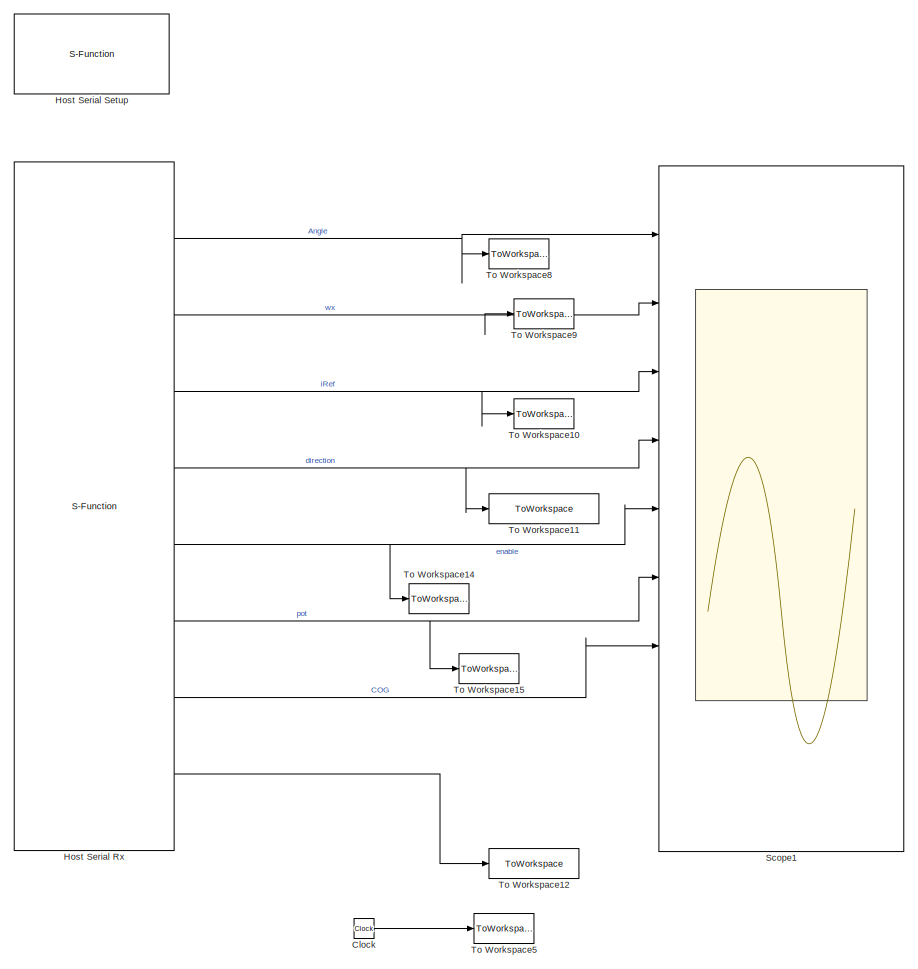
[diagram: root canvas - part 1/3, top left region]
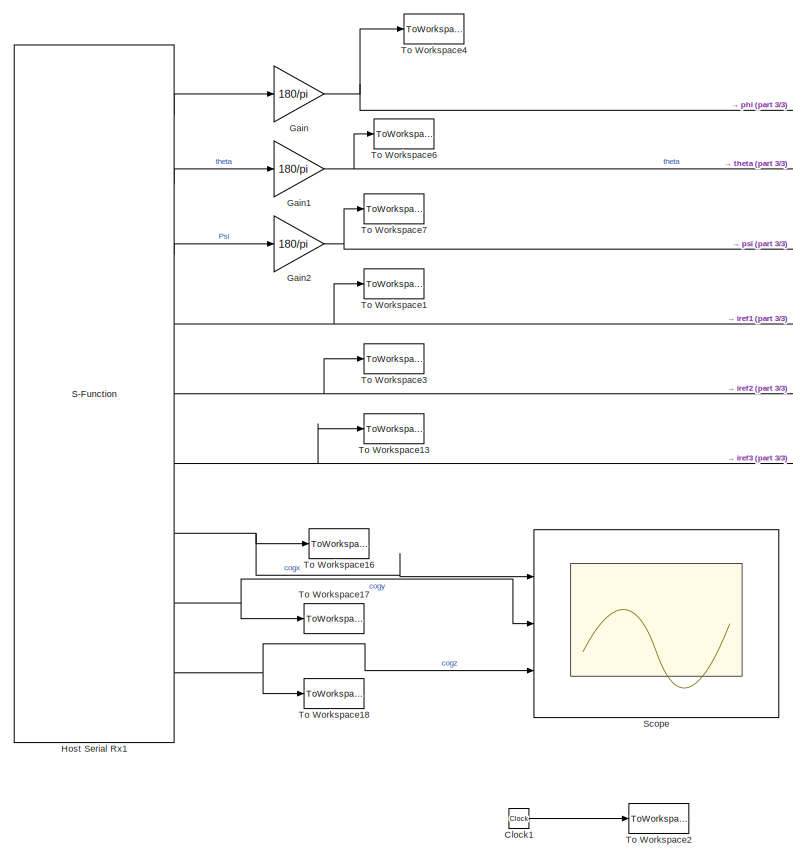
[diagram: root canvas - part 2/3, bottom left region]
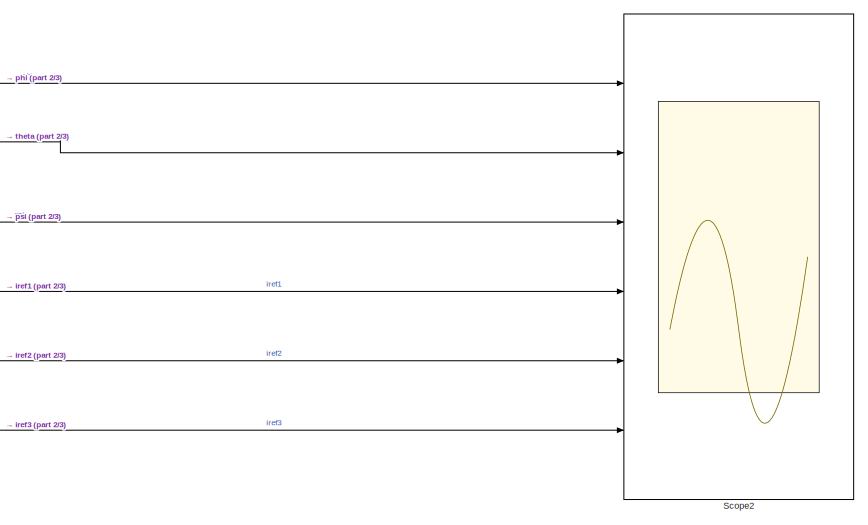
[diagram: root canvas - part 3/3, bottom right region]
MODEL slx_5a1dd68be705
KIND model
CONFIG AbsTol = auto
CONFIG EnableMultiTasking = off
CONFIG FixedStep = Ts.base
CONFIG MaxStep = auto
CONFIG MinStep = auto
CONFIG RelTol = 1e-3
CONFIG SampleTimeConstraint = Unconstrained
CONFIG Solver = FixedStepAuto
CONFIG SolverName = FixedStepAuto
CONFIG StartTime = 0.0
CONFIG StopTime = inf
BLOCK [Clock] Clock
  Commented = on
BLOCK [Clock] Clock1
BLOCK [Gain] Gain
  Gain = 180/pi
  OutDataTypeStr = Inherit: Inherit via internal rule
  ParamDataTypeStr = Inherit: Inherit via internal rule
  SaturateOnIntegerOverflow = off
BLOCK [Gain] Gain1
  Gain = 180/pi
  OutDataTypeStr = Inherit: Inherit via internal rule
  ParamDataTypeStr = Inherit: Inherit via internal rule
  SaturateOnIntegerOverflow = off
BLOCK [Gain] Gain2
  Gain = 180/pi
  OutDataTypeStr = Inherit: Inherit via internal rule
  ParamDataTypeStr = Inherit: Inherit via internal rule
  SaturateOnIntegerOverflow = off
BLOCK [S-Function] Host Serial Rx
  Commented = on
  EnableBusSupport = off
  FunctionName = amg_usbconverter_n_serial
  Parameters = configuration,port,transfer,baudrate,stopbit,inputtype,outputtype,binheaderarray,binterminatorarray,asciiheader,asciiterminator,bindatalength,packetmode,timeout,sampletime,initialvalues,blockid
  Ports = [0, 8]
  Priority = 1
  SFcnIsStateOwnerBlock = off
  SFunctionDeploymentMode = off
BLOCK [S-Function] Host Serial Rx1
  EnableBusSupport = off
  FunctionName = amg_usbconverter_n_serial
  Parameters = configuration,port,transfer,baudrate,stopbit,inputtype,outputtype,binheaderarray,binterminatorarray,asciiheader,asciiterminator,bindatalength,packetmode,timeout,sampletime,initialvalues,blockid
  Ports = [0, 9]
  Priority = 1
  SFcnIsStateOwnerBlock = off
  SFunctionDeploymentMode = off
BLOCK [S-Function] Host Serial Setup
  EnableBusSupport = off
  FunctionName = amg_usbconverter_n_serial
  Parameters = configuration,port,transfer,baudrate,stopbit,inputtype,outputtype,binheaderarray,binterminatorarray,asciiheader,asciiterminator,bindatalength,packetmode,timeout,sampletime,sampletimestr,blockid
  Ports = []
  Priority = 1
  SFcnIsStateOwnerBlock = off
  SFunctionDeploymentMode = off
BLOCK [Scope] Scope
  NumInputPorts = 3
  Ports = [3]
  ScopeSpecificationString = Simulink.scopes.TimeScopeBlockCfg('CurrentConfiguration', extmgr.ConfigurationSet(extmgr.Configuration('Core','General UI',true),extmgr.Configuration('Core','Source UI',true),extmgr.Configuration('Sources','WiredSimulink',true,'DataLoggingVariableName','ScopeData1'),extmgr.Configuration('Visuals','Time Domain',true,'SerializedDisplays',{struct('MinYLimReal','0.08925','MaxYLimReal','0.09075','YLabe...<+1417ch>
BLOCK [Scope] Scope1
  Commented = on
  NumInputPorts = 9
  Ports = [9]
  ScopeSpecificationString = Simulink.scopes.TimeScopeBlockCfg('CurrentConfiguration', extmgr.ConfigurationSet(extmgr.Configuration('Core','General UI',true),extmgr.Configuration('Core','Source UI',true),extmgr.Configuration('Sources','WiredSimulink',true),extmgr.Configuration('Visuals','Time Domain',true,'SerializedDisplays',{struct('MinYLimReal','-1.01045','MaxYLimReal','1.21951','YLabelReal','','MinYLimMag','0.00000','MaxY...<+6852ch>
BLOCK [Scope] Scope2
  NumInputPorts = 6
  Ports = [6]
  ScopeSpecificationString = Simulink.scopes.TimeScopeBlockCfg('CurrentConfiguration', extmgr.ConfigurationSet(extmgr.Configuration('Core','General UI',true),extmgr.Configuration('Core','Source UI',true),extmgr.Configuration('Sources','WiredSimulink',true,'DataLoggingVariableName','ScopeData1','DataLoggingMaxPoints','20/Ts.base'),extmgr.Configuration('Visuals','Time Domain',true,'SerializedDisplays',{struct('MinYLimReal','-20...<+4926ch>
BLOCK [ToWorkspace] To Workspace1
  FixptAsFi = on
  MaxDataPoints = inf
  Ports = [1]
  SampleTime = -1
  Save2DSignal = 3-D array (concatenate along third dimension)
  SaveFormat = Timeseries
  VariableName = iref1
BLOCK [ToWorkspace] To Workspace10
  Commented = on
  FixptAsFi = on
  MaxDataPoints = inf
  Ports = [1]
  SampleTime = -1
  Save2DSignal = 3-D array (concatenate along third dimension)
  SaveFormat = Timeseries
  VariableName = iref
BLOCK [ToWorkspace] To Workspace11
  Commented = on
  FixptAsFi = on
  MaxDataPoints = inf
  Ports = [1]
  SampleTime = -1
  Save2DSignal = 3-D array (concatenate along third dimension)
  SaveFormat = Timeseries
  VariableName = direction
BLOCK [ToWorkspace] To Workspace12
  Commented = on
  FixptAsFi = on
  MaxDataPoints = inf
  Ports = [1]
  SampleTime = -1
  Save2DSignal = 3-D array (concatenate along third dimension)
  SaveFormat = Timeseries
  VariableName = sample_counter1
BLOCK [ToWorkspace] To Workspace13
  FixptAsFi = on
  MaxDataPoints = inf
  Ports = [1]
  SampleTime = -1
  Save2DSignal = 3-D array (concatenate along third dimension)
  SaveFormat = Timeseries
  VariableName = iref3
BLOCK [ToWorkspace] To Workspace14
  Commented = on
  FixptAsFi = on
  MaxDataPoints = inf
  Ports = [1]
  SampleTime = -1
  Save2DSignal = 3-D array (concatenate along third dimension)
  SaveFormat = Timeseries
  VariableName = enable
BLOCK [ToWorkspace] To Workspace15
  Commented = on
  FixptAsFi = on
  MaxDataPoints = inf
  Ports = [1]
  SampleTime = -1
  Save2DSignal = 3-D array (concatenate along third dimension)
  SaveFormat = Timeseries
  VariableName = pot
BLOCK [ToWorkspace] To Workspace16
  FixptAsFi = on
  MaxDataPoints = inf
  Ports = [1]
  SampleTime = -1
  Save2DSignal = 3-D array (concatenate along third dimension)
  SaveFormat = Timeseries
  VariableName = cogx
BLOCK [ToWorkspace] To Workspace17
  FixptAsFi = on
  MaxDataPoints = inf
  Ports = [1]
  SampleTime = -1
  Save2DSignal = 3-D array (concatenate along third dimension)
  SaveFormat = Timeseries
  VariableName = cogy
BLOCK [ToWorkspace] To Workspace18
  FixptAsFi = on
  MaxDataPoints = inf
  Ports = [1]
  SampleTime = -1
  Save2DSignal = 3-D array (concatenate along third dimension)
  SaveFormat = Timeseries
  VariableName = cogz
BLOCK [ToWorkspace] To Workspace2
  FixptAsFi = on
  MaxDataPoints = inf
  Ports = [1]
  SampleTime = -1
  Save2DSignal = 3-D array (concatenate along third dimension)
  SaveFormat = Timeseries
  VariableName = clock1
BLOCK [ToWorkspace] To Workspace3
  FixptAsFi = on
  MaxDataPoints = inf
  Ports = [1]
  SampleTime = -1
  Save2DSignal = 3-D array (concatenate along third dimension)
  SaveFormat = Timeseries
  VariableName = iref2
BLOCK [ToWorkspace] To Workspace4
  FixptAsFi = on
  MaxDataPoints = inf
  Ports = [1]
  SampleTime = -1
  Save2DSignal = 3-D array (concatenate along third dimension)
  SaveFormat = Timeseries
  VariableName = phi
BLOCK [ToWorkspace] To Workspace5
  Commented = on
  FixptAsFi = on
  MaxDataPoints = inf
  Ports = [1]
  SampleTime = -1
  Save2DSignal = 3-D array (concatenate along third dimension)
  SaveFormat = Timeseries
  VariableName = clock
BLOCK [ToWorkspace] To Workspace6
  FixptAsFi = on
  MaxDataPoints = inf
  Ports = [1]
  SampleTime = -1
  Save2DSignal = 3-D array (concatenate along third dimension)
  SaveFormat = Timeseries
  VariableName = theta
BLOCK [ToWorkspace] To Workspace7
  FixptAsFi = on
  MaxDataPoints = inf
  Ports = [1]
  SampleTime = -1
  Save2DSignal = 3-D array (concatenate along third dimension)
  SaveFormat = Timeseries
  VariableName = psi
BLOCK [ToWorkspace] To Workspace8
  Commented = on
  FixptAsFi = on
  MaxDataPoints = inf
  Ports = [1]
  SampleTime = -1
  Save2DSignal = 3-D array (concatenate along third dimension)
  SaveFormat = Timeseries
  VariableName = angle
BLOCK [ToWorkspace] To Workspace9
  Commented = on
  FixptAsFi = on
  MaxDataPoints = inf
  Ports = [1]
  SampleTime = -1
  Save2DSignal = 3-D array (concatenate along third dimension)
  SaveFormat = Timeseries
  VariableName = wx
LINE Clock1:1 -> To Workspace2:1
LINE Clock:1 -> To Workspace5:1
NET Gain1:1 -> Scope2:2, To Workspace6:1
NET Gain2:1 -> Scope2:3, To Workspace7:1
NET Gain:1 -> Scope2:1, To Workspace4:1
LINE Host Serial Rx1:1 -> Gain:1
LINE Host Serial Rx1:2 -> Gain1:1
LINE Host Serial Rx1:3 -> Gain2:1
NET Host Serial Rx1:4 -> Scope2:4, To Workspace1:1
NET Host Serial Rx1:5 -> Scope2:5, To Workspace3:1
NET Host Serial Rx1:6 -> Scope2:6, To Workspace13:1
NET Host Serial Rx1:7 -> Scope:1, To Workspace16:1
NET Host Serial Rx1:8 -> Scope:2, To Workspace17:1
NET Host Serial Rx1:9 -> Scope:3, To Workspace18:1
NET Host Serial Rx:1 -> Scope1:1, To Workspace8:1
NET Host Serial Rx:2 -> Scope1:2, To Workspace9:1
NET Host Serial Rx:3 -> Scope1:3, To Workspace10:1
NET Host Serial Rx:4 -> Scope1:4, To Workspace11:1
NET Host Serial Rx:5 -> Scope1:5, To Workspace14:1
NET Host Serial Rx:6 -> Scope1:6, To Workspace15:1
LINE Host Serial Rx:7 -> Scope1:7
LINE Host Serial Rx:8 -> To Workspace12:1
note: NET lines group one-source signal fan-out (src -> all destinations, sorted); 1:1 wires keep LINE
